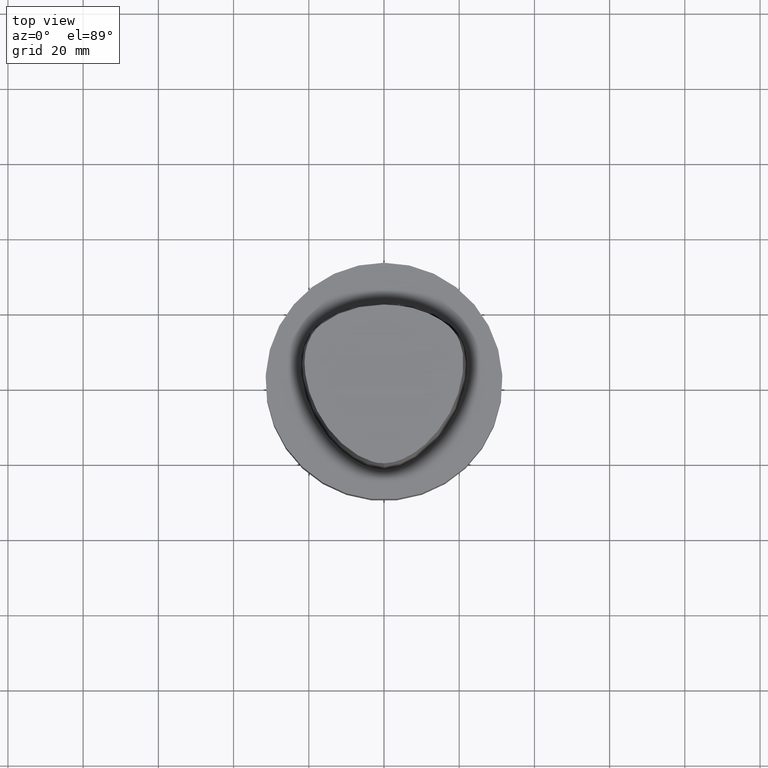
[diagram: clean part render]
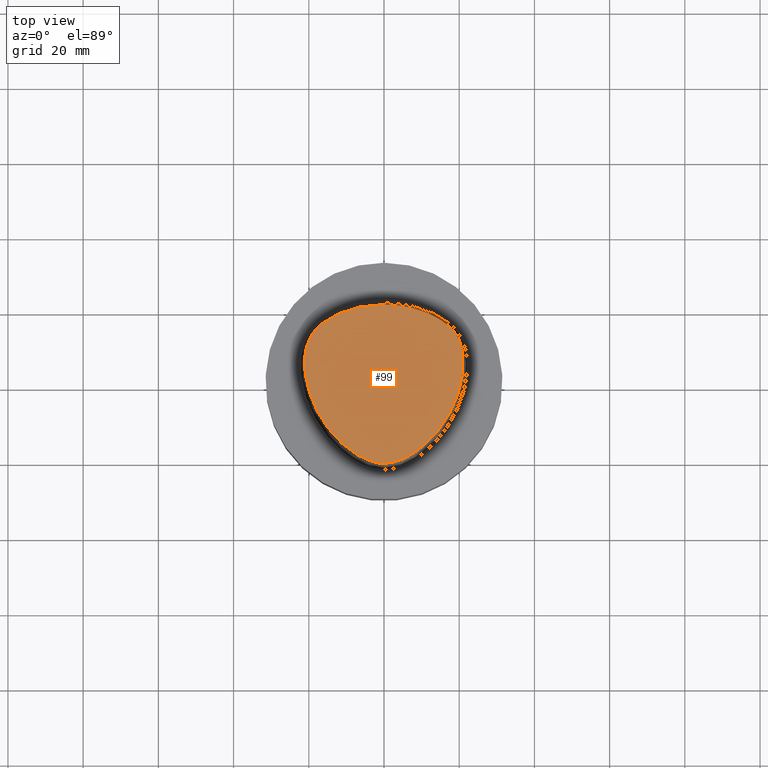
[diagram: same view with one face highlighted and labeled with its STEP entity id]
A machine part, top view. The second image highlights one B-rep face of the part: STEP entity #99.
In plain terms, the highlighted planar face has unit normal (-0, 0, 1).
Its self-contained STEP definition (entity closure, byte-faithful):
#99=ADVANCED_FACE('Unnamed[1]',(#233),#234,.T.);
#101=EDGE_CURVE('Unnamed[1]',#195,#203,#236,.T.);
#158=EDGE_CURVE('Unnamed[1]',#203,#195,#318,.T.);
#195=VERTEX_POINT('',#354);
#203=VERTEX_POINT('',#432);
#233=FACE_OUTER_BOUND('',#470,.T.);
#234=PLANE('',#471);
#236=B_SPLINE_CURVE_WITH_KNOTS('',3,(#474,#475,#476,#477,#478,#479,#480,#481,#482,#483,#484,#485,#486,#487,#488,#489),.UNSPECIFIED.,.F.,.F.,(4,1,1,1,1,1,1,1,1,1,1,1,1,4),(6.61513393087476,6.99917207152274,7.48193246986995,7.96289324787093,8.45540287038584,9.10291653679981,9.67129810936083,10.1618749681153,10.6358867802489,11.1080734988593,11.6043706019633,12.09451993853,12.6985979284494,13.2302678617486),.UNSPECIFIED.);
#318=B_SPLINE_CURVE_WITH_KNOTS('',3,(#681,#682,#683,#684,#685,#686,#687,#688,#689,#690,#691,#692,#693,#694,#695,#696),.UNSPECIFIED.,.F.,.F.,(4,1,1,1,1,1,1,1,1,1,1,1,1,4),(0.0,0.447924670568964,0.9388024242536,1.50591409090711,2.07314340012323,2.72424957442464,3.2253501842849,3.80982102049476,4.34867996267067,4.85900173381144,5.37972031856977,6.03459825488646,6.61113557741484,6.61513393087395),.UNSPECIFIED.);
#354=CARTESIAN_POINT('',(0.038736923393866,-22.5191997536361,38.0));
#432=CARTESIAN_POINT('',(-0.001218547003662,19.7276821925089,38.0));
#470=EDGE_LOOP('',(#779,#780));
#471=AXIS2_PLACEMENT_3D('',#781,#782,#783);
#474=CARTESIAN_POINT('',(0.038736923394311,-22.519199753636,38.0));
#475=CARTESIAN_POINT('',(1.31742058183662,-22.512662269405,38.0));
#476=CARTESIAN_POINT('',(4.2093773447498,-21.9116226439989,38.0));
#477=CARTESIAN_POINT('',(8.20895504542113,-19.7798683845067,38.0));
#478=CARTESIAN_POINT('',(11.9784633234593,-16.681663904162,38.0));
#479=CARTESIAN_POINT('',(15.5308821579362,-12.5807487594113,38.0));
#480=CARTESIAN_POINT('',(18.4566248438667,-7.64932246015528,38.0));
#481=CARTESIAN_POINT('',(20.4036090752029,-2.27012499825289,38.0));
#482=CARTESIAN_POINT('',(21.2357187429189,2.79891401173156,38.0));
#483=CARTESIAN_POINT('',(21.0811206267748,7.62543090736657,38.0));
#484=CARTESIAN_POINT('',(19.3383577336563,12.2772250726194,38.0));
#485=CARTESIAN_POINT('',(15.5796322014404,15.5799672120682,38.0));
#486=CARTESIAN_POINT('',(10.8392956074438,17.9834601687347,38.0));
#487=CARTESIAN_POINT('',(5.56068045850571,19.4586143858472,38.0));
#488=CARTESIAN_POINT('',(1.77223893711014,19.6418877095654,38.0));
#489=CARTESIAN_POINT('',(-0.001218367817519,19.7276822012873,38.0));
#681=CARTESIAN_POINT('',(-0.001218547003662,19.7276821925089,38.0));
#682=CARTESIAN_POINT('',(-1.49408492138443,19.6585333605309,38.0));
#683=CARTESIAN_POINT('',(-4.62297391420352,19.513604770166,38.0));
#684=CARTESIAN_POINT('',(-9.56160616752212,18.4291575730197,38.0));
#685=CARTESIAN_POINT('',(-14.5427684976927,16.2697452580488,38.0));
#686=CARTESIAN_POINT('',(-19.4315563551602,12.5302108980807,38.0));
#687=CARTESIAN_POINT('',(-21.306358833612,6.76352894547076,38.0));
#688=CARTESIAN_POINT('',(-21.0724946936277,0.957075236984038,38.0));
#689=CARTESIAN_POINT('',(-19.7876470880144,-4.34628503581652,38.0));
#690=CARTESIAN_POINT('',(-17.5396999600095,-9.33314444653089,38.0));
#691=CARTESIAN_POINT('',(-14.645447733857,-13.7185760345629,38.0));
#692=CARTESIAN_POINT('',(-10.7996726536643,-17.856257282137,38.0));
#693=CARTESIAN_POINT('',(-6.00479510196376,-21.2687382067675,38.0));
#694=CARTESIAN_POINT('',(-1.90747171908525,-22.5250621415864,38.0));
#695=CARTESIAN_POINT('',(0.025424107066464,-22.5192678176378,38.0));
#696=CARTESIAN_POINT('',(0.038736923394311,-22.519199753636,38.0));
#779=ORIENTED_EDGE('',*,*,#158,.T.);
#780=ORIENTED_EDGE('',*,*,#101,.T.);
#781=CARTESIAN_POINT('',(0.008647668684817,1.77491953635526,38.0));
#782=DIRECTION('',(-0.0,2.95577857036584E-049,1.0));
#783=DIRECTION('',(1.0,0.0,0.0));